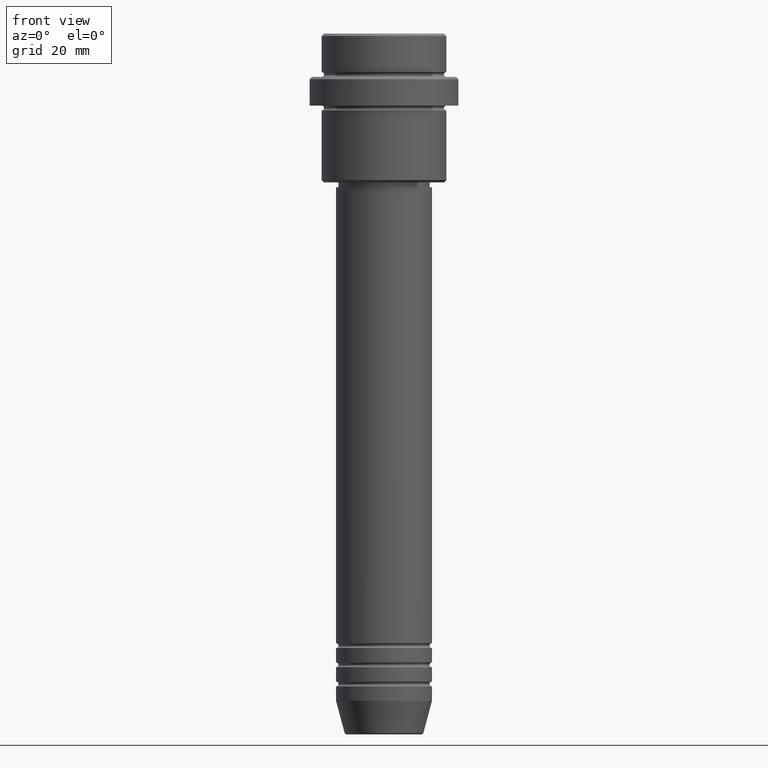
[diagram: clean part render]
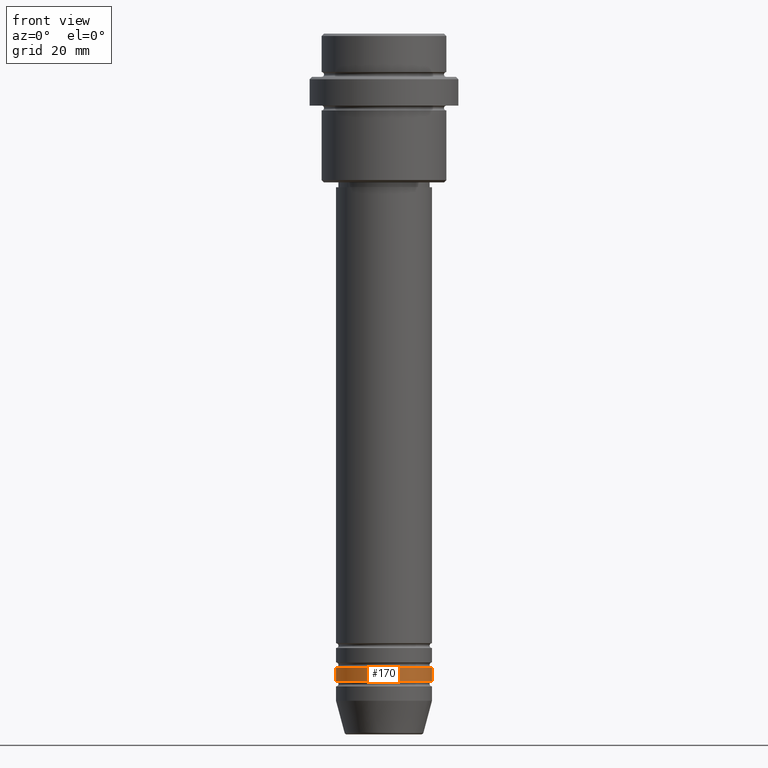
[diagram: same view with one face highlighted and labeled with its STEP entity id]
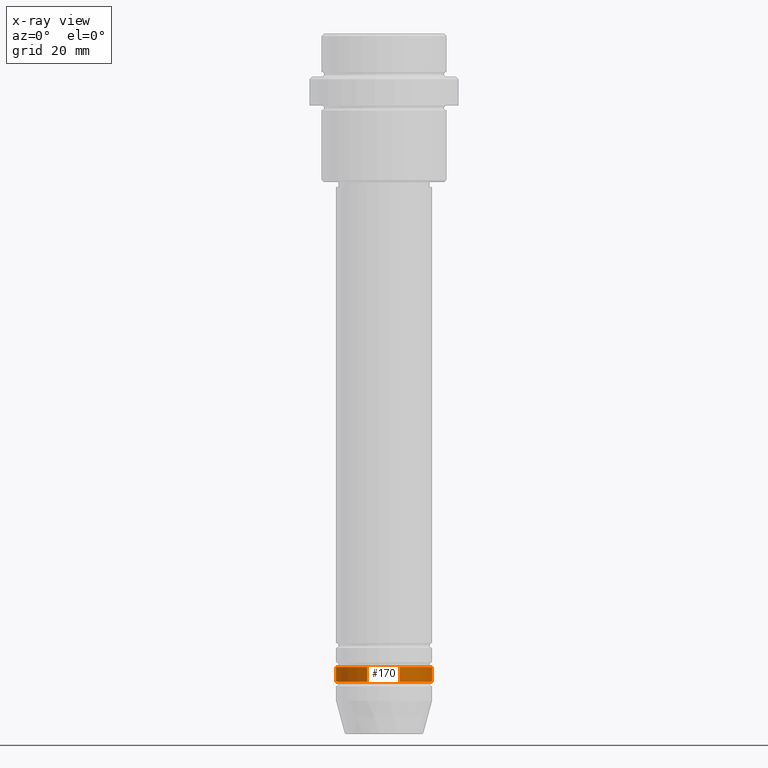
[diagram: x-ray of the same camera — body ghosted, the highlighted face saturated]
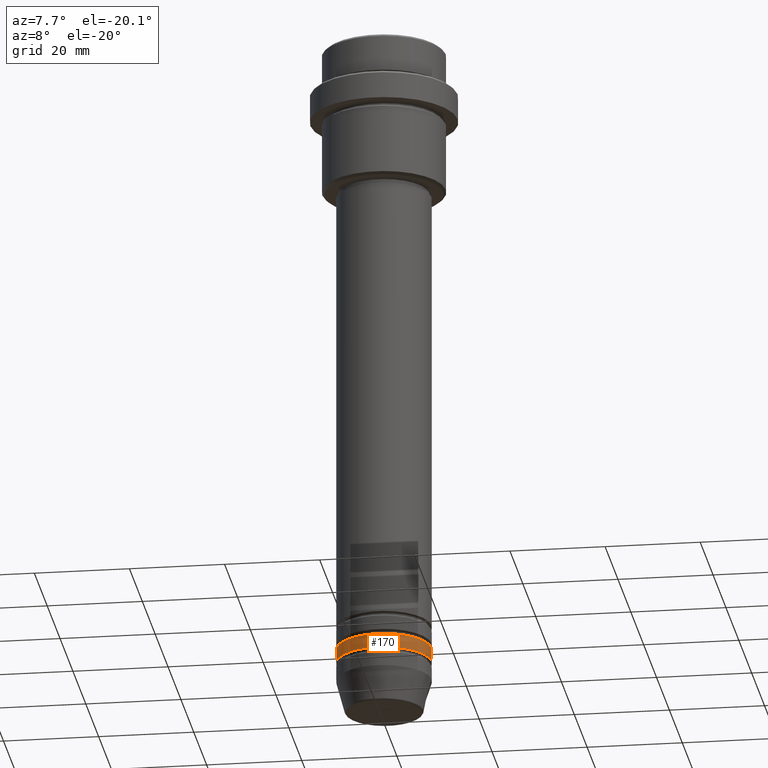
[diagram: same view with one face highlighted and labeled with its STEP entity id]
A machine part, front view. The second image highlights one B-rep face of the part: STEP entity #170.
The next image is the same camera in x-ray: the body ghosted, the highlighted face saturated — about 0% of this face is hidden behind the body in this view.
A second angle (auxiliary view) of the same face is appended — the face is thin or edge-on in the first view.
In plain terms, the highlighted cylindrical surface (partial cylindrical patch) has radius 10 mm, axis along (-0, -0, 1).
Its self-contained STEP definition (entity closure, byte-faithful):
#145 = CARTESIAN_POINT ( 'NONE',  ( 0.000000000000000000, 0.000000000000000000, -131.9999999999998863 ) ) ;
#170 = ADVANCED_FACE ( 'NONE', ( #952 ), #1369, .T. ) ;
#174 = AXIS2_PLACEMENT_3D ( 'NONE', #145, #583, #1135 ) ;
#218 = VERTEX_POINT ( 'NONE', #1034 ) ;
#238 = EDGE_LOOP ( 'NONE', ( #585, #700, #754, #761 ) ) ;
#266 = VECTOR ( 'NONE', #523, 1000.000000000000000 ) ;
#303 = CARTESIAN_POINT ( 'NONE',  ( 0.000000000000000000, 0.000000000000000000, -134.9999999999998863 ) ) ;
#367 = DIRECTION ( 'NONE',  ( -0.000000000000000000, -0.000000000000000000, 1.000000000000000000 ) ) ;
#385 = LINE ( 'NONE', #1186, #266 ) ;
#413 = AXIS2_PLACEMENT_3D ( 'NONE', #703, #367, #807 ) ;
#421 = AXIS2_PLACEMENT_3D ( 'NONE', #303, #643, #517 ) ;
#465 = CARTESIAN_POINT ( 'NONE',  ( -10.00000000000000000, 1.224646799147353256E-15, -131.9999999999998863 ) ) ;
#470 = EDGE_CURVE ( 'NONE', #1351, #546, #594, .T. ) ;
#517 = DIRECTION ( 'NONE',  ( 1.000000000000000000, 0.000000000000000000, 0.000000000000000000 ) ) ;
#523 = DIRECTION ( 'NONE',  ( -0.000000000000000000, -0.000000000000000000, 1.000000000000000000 ) ) ;
#546 = VERTEX_POINT ( 'NONE', #1157 ) ;
#583 = DIRECTION ( 'NONE',  ( -0.000000000000000000, -0.000000000000000000, 1.000000000000000000 ) ) ;
#585 = ORIENTED_EDGE ( 'NONE', *, *, #1121, .F. ) ;
#594 = CIRCLE ( 'NONE', #174, 10.00000000000000000 ) ;
#602 = EDGE_CURVE ( 'NONE', #218, #546, #1255, .T. ) ;
#643 = DIRECTION ( 'NONE',  ( -0.000000000000000000, -0.000000000000000000, 1.000000000000000000 ) ) ;
#700 = ORIENTED_EDGE ( 'NONE', *, *, #1156, .T. ) ;
#703 = CARTESIAN_POINT ( 'NONE',  ( 0.000000000000000000, 0.000000000000000000, 0.000000000000000000 ) ) ;
#717 = CARTESIAN_POINT ( 'NONE',  ( 10.00000000000000000, 0.000000000000000000, 0.000000000000000000 ) ) ;
#754 = ORIENTED_EDGE ( 'NONE', *, *, #602, .T. ) ;
#761 = ORIENTED_EDGE ( 'NONE', *, *, #470, .F. ) ;
#807 = DIRECTION ( 'NONE',  ( 1.000000000000000000, 0.000000000000000000, 0.000000000000000000 ) ) ;
#952 = FACE_OUTER_BOUND ( 'NONE', #238, .T. ) ;
#1029 = VERTEX_POINT ( 'NONE', #1053 ) ;
#1034 = CARTESIAN_POINT ( 'NONE',  ( 10.00000000000000000, 0.000000000000000000, -134.9999999999998863 ) ) ;
#1053 = CARTESIAN_POINT ( 'NONE',  ( -10.00000000000000000, 1.224646799147353256E-15, -134.9999999999998863 ) ) ;
#1057 = CIRCLE ( 'NONE', #421, 10.00000000000000000 ) ;
#1121 = EDGE_CURVE ( 'NONE', #1029, #1351, #385, .T. ) ;
#1135 = DIRECTION ( 'NONE',  ( 1.000000000000000000, 0.000000000000000000, 0.000000000000000000 ) ) ;
#1156 = EDGE_CURVE ( 'NONE', #1029, #218, #1057, .T. ) ;
#1157 = CARTESIAN_POINT ( 'NONE',  ( 10.00000000000000000, 0.000000000000000000, -131.9999999999998863 ) ) ;
#1186 = CARTESIAN_POINT ( 'NONE',  ( -10.00000000000000000, 1.224646799147353256E-15, 0.000000000000000000 ) ) ;
#1255 = LINE ( 'NONE', #717, #1308 ) ;
#1308 = VECTOR ( 'NONE', #1397, 1000.000000000000000 ) ;
#1351 = VERTEX_POINT ( 'NONE', #465 ) ;
#1369 = CYLINDRICAL_SURFACE ( 'NONE', #413, 10.00000000000000000 ) ;
#1397 = DIRECTION ( 'NONE',  ( -0.000000000000000000, -0.000000000000000000, 1.000000000000000000 ) ) ;